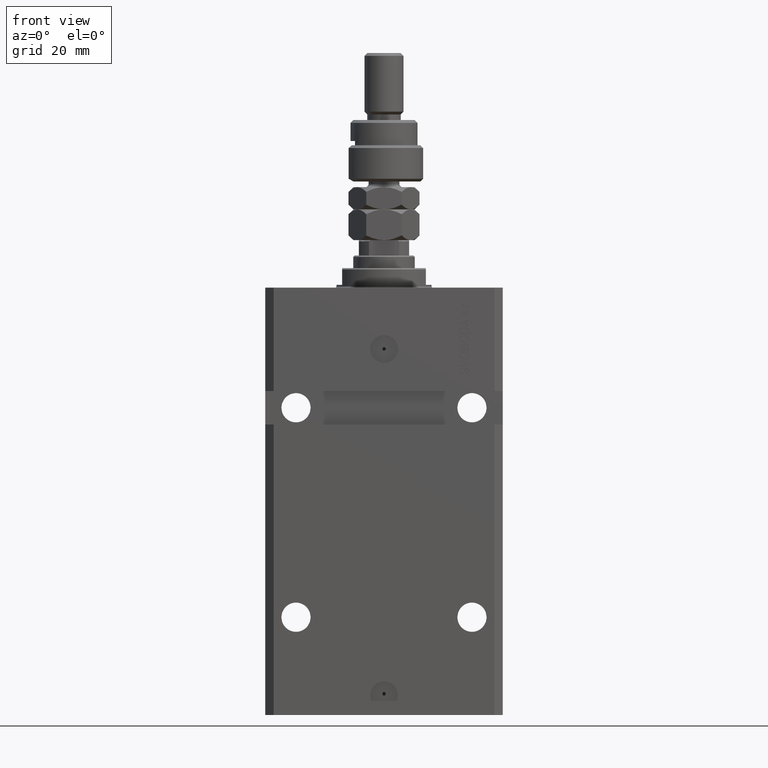
[diagram: clean part render]
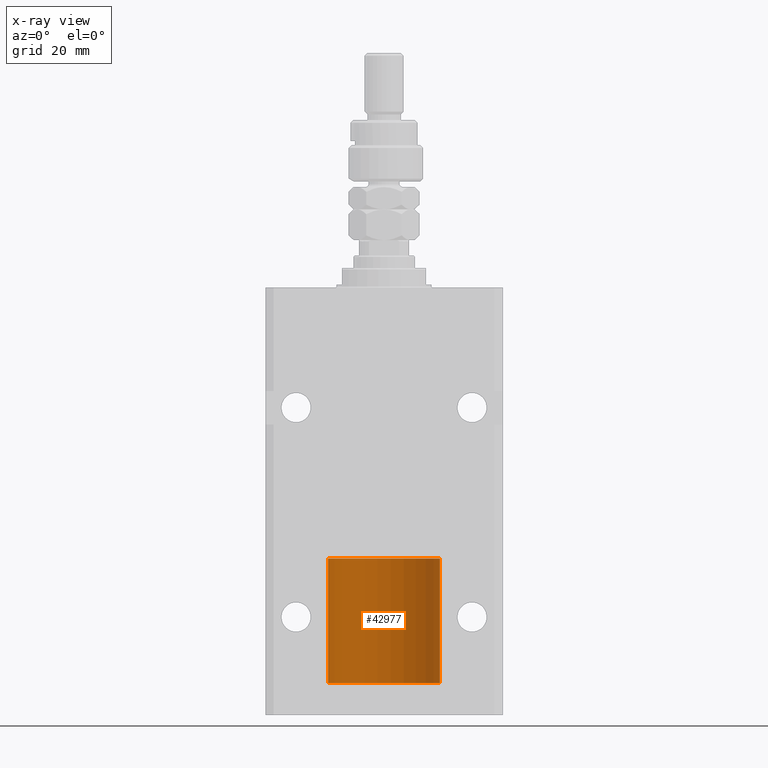
[diagram: x-ray — body ghosted, one internal face saturated and labeled with its STEP entity id]
A machine part, front view, then the same camera in x-ray: the body is ghosted and one INTERNAL B-rep face — a face not visible from any outside direction — is saturated and labeled: STEP entity #42977.
In plain terms, the highlighted cylindrical surface (partial cylindrical patch) has radius 20 mm, axis along (-0, -0, -1).
Its self-contained STEP definition (entity closure, byte-faithful):
#1369 = VERTEX_POINT ( 'NONE', #37654 ) ;
#3317 = CARTESIAN_POINT ( 'NONE',  ( 20.00000000000000000, 2.449293598294706513E-15, 44.60000000000000142 ) ) ;
#7943 = EDGE_LOOP ( 'NONE', ( #47887, #48018, #35942, #10124 ) ) ;
#9988 = CARTESIAN_POINT ( 'NONE',  ( 20.00000000000000000, 2.449293598294706513E-15, 44.60000000000000142 ) ) ;
#10124 = ORIENTED_EDGE ( 'NONE', *, *, #41960, .F. ) ;
#10280 = VERTEX_POINT ( 'NONE', #23417 ) ;
#12170 = VERTEX_POINT ( 'NONE', #9988 ) ;
#19380 = CARTESIAN_POINT ( 'NONE',  ( 0.000000000000000000, 0.000000000000000000, 44.60000000000000142 ) ) ;
#22667 = DIRECTION ( 'NONE',  ( 0.000000000000000000, 0.000000000000000000, 1.000000000000000000 ) ) ;
#23417 = CARTESIAN_POINT ( 'NONE',  ( -20.00000000000000000, 0.000000000000000000, 44.60000000000000142 ) ) ;
#26090 = AXIS2_PLACEMENT_3D ( 'NONE', #30434, #42641, #30176 ) ;
#26124 = AXIS2_PLACEMENT_3D ( 'NONE', #19380, #38620, #39136 ) ;
#26522 = CYLINDRICAL_SURFACE ( 'NONE', #26090, 20.00000000000000000 ) ;
#27413 = CIRCLE ( 'NONE', #34055, 20.00000000000000000 ) ;
#28981 = CARTESIAN_POINT ( 'NONE',  ( -20.00000000000000000, 0.000000000000000000, 0.000000000000000000 ) ) ;
#30176 = DIRECTION ( 'NONE',  ( -1.000000000000000000, 0.000000000000000000, 0.000000000000000000 ) ) ;
#30285 = EDGE_CURVE ( 'NONE', #1369, #32511, #27413, .T. ) ;
#30429 = LINE ( 'NONE', #37706, #50150 ) ;
#30434 = CARTESIAN_POINT ( 'NONE',  ( 0.000000000000000000, 0.000000000000000000, 44.60000000000000142 ) ) ;
#32511 = VERTEX_POINT ( 'NONE', #28981 ) ;
#34055 = AXIS2_PLACEMENT_3D ( 'NONE', #42182, #22667, #38531 ) ;
#34580 = FACE_OUTER_BOUND ( 'NONE', #7943, .T. ) ;
#35895 = VECTOR ( 'NONE', #46784, 1000.000000000000000 ) ;
#35942 = ORIENTED_EDGE ( 'NONE', *, *, #30285, .T. ) ;
#37452 = DIRECTION ( 'NONE',  ( -0.000000000000000000, -0.000000000000000000, -1.000000000000000000 ) ) ;
#37654 = CARTESIAN_POINT ( 'NONE',  ( 20.00000000000000000, 2.449293598294706513E-15, 0.000000000000000000 ) ) ;
#37706 = CARTESIAN_POINT ( 'NONE',  ( -20.00000000000000000, 0.000000000000000000, 44.60000000000000142 ) ) ;
#38531 = DIRECTION ( 'NONE',  ( 1.000000000000000000, 0.000000000000000000, 0.000000000000000000 ) ) ;
#38620 = DIRECTION ( 'NONE',  ( 0.000000000000000000, 0.000000000000000000, 1.000000000000000000 ) ) ;
#39084 = EDGE_CURVE ( 'NONE', #12170, #1369, #42883, .T. ) ;
#39136 = DIRECTION ( 'NONE',  ( 1.000000000000000000, 0.000000000000000000, 0.000000000000000000 ) ) ;
#41960 = EDGE_CURVE ( 'NONE', #10280, #32511, #30429, .T. ) ;
#42182 = CARTESIAN_POINT ( 'NONE',  ( 0.000000000000000000, 0.000000000000000000, 0.000000000000000000 ) ) ;
#42641 = DIRECTION ( 'NONE',  ( -0.000000000000000000, -0.000000000000000000, -1.000000000000000000 ) ) ;
#42883 = LINE ( 'NONE', #3317, #35895 ) ;
#42977 = ADVANCED_FACE ( 'NONE', ( #34580 ), #26522, .T. ) ;
#44181 = EDGE_CURVE ( 'NONE', #12170, #10280, #48552, .T. ) ;
#46784 = DIRECTION ( 'NONE',  ( -0.000000000000000000, -0.000000000000000000, -1.000000000000000000 ) ) ;
#47887 = ORIENTED_EDGE ( 'NONE', *, *, #44181, .F. ) ;
#48018 = ORIENTED_EDGE ( 'NONE', *, *, #39084, .T. ) ;
#48552 = CIRCLE ( 'NONE', #26124, 20.00000000000000000 ) ;
#50150 = VECTOR ( 'NONE', #37452, 1000.000000000000000 ) ;